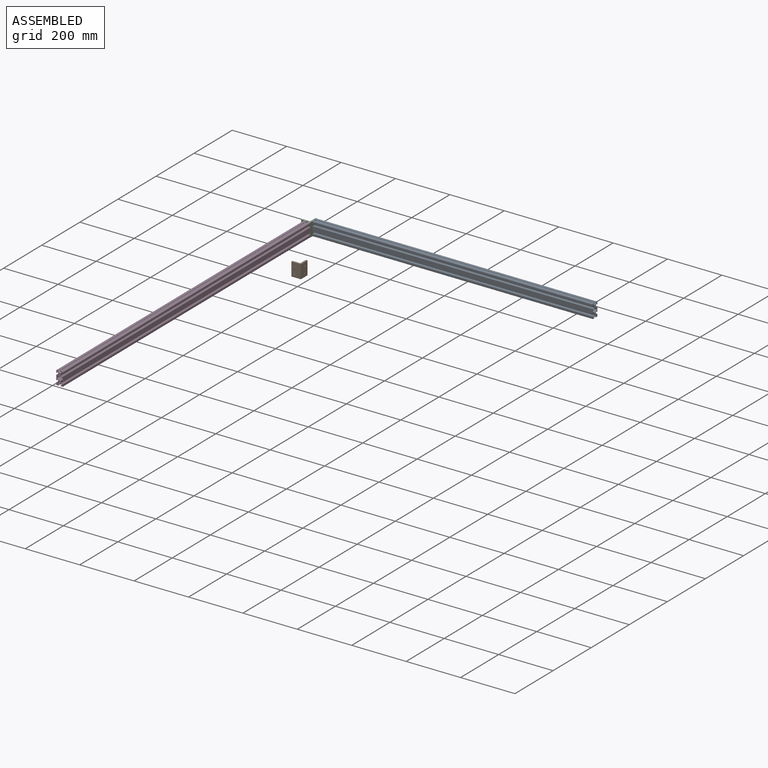
[diagram: assembled view]
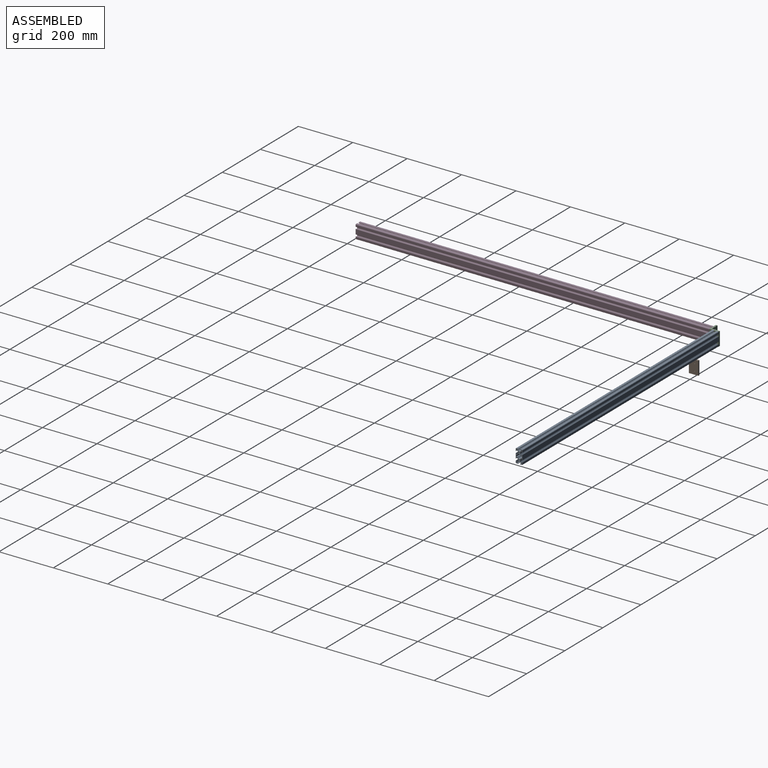
[diagram: assembled view, second angle]
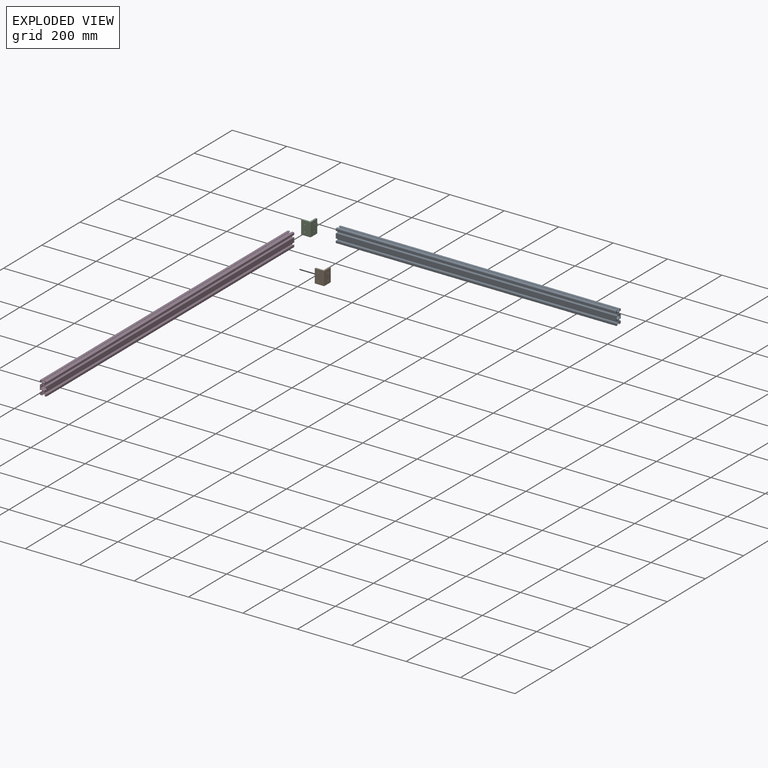
[diagram: exploded view]
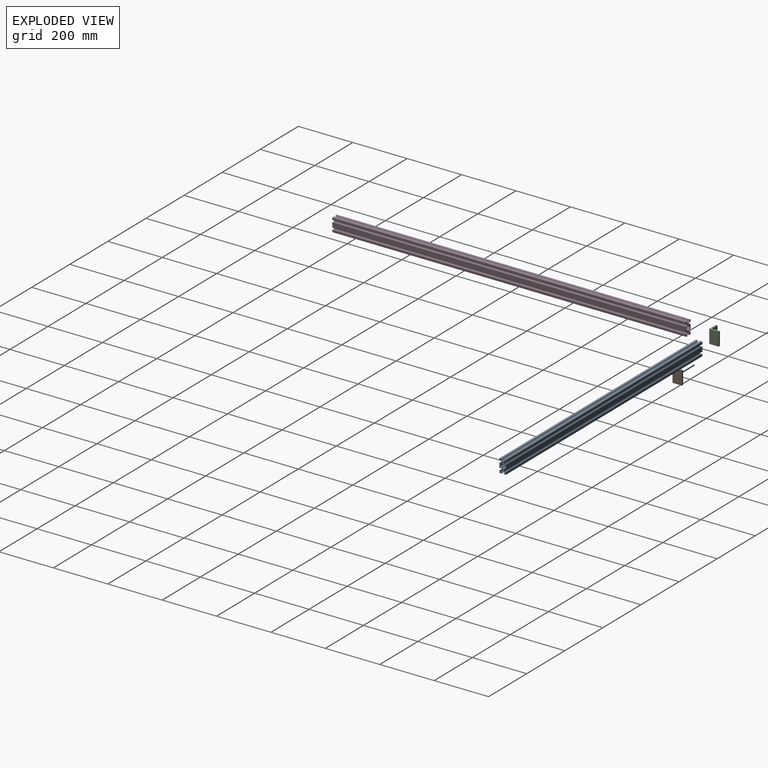
[diagram: exploded view, second angle]
ASSEMBLY  parts=4 mates=2
PART A: 108 faces, bbox 25x50x1030 mm
  f0: cylinder r=0.76mm len=1030mm, axis (0,0,-1), area 1229.6mm2, adj f1,f2,f106,f107
  f1: plane 1030x0.24mm, normal (0,-1,0), area 249.1mm2, adj f0,f105,f106,f107
  f2: plane 1030x4.34mm, normal (1,0,0), area 4470.2mm2, adj f0,f85,f106,f107
  f3: plane 1030x6.15mm, normal (-1,0,0), area 6333.4mm2, adj f4,f82,f106,f107
  f4: cylinder r=1.07mm len=1030mm, axis (0,0,-1), area 3462.3mm2, adj f3,f5,f106,f107
  f5: plane 1030x2.11mm, normal (1,0,0), area 2171.4mm2, adj f4,f6,f106,f107
  f6: cylinder r=1mm len=1030mm, axis (0,0,-1), area 2431.3mm2, adj f5,f7,f106,f107
  f7: plane 1030x3.32mm, normal (-0.71,-0.71,0), area 4838mm2, adj f6,f8,f106,f107
  f8: cylinder r=3.17mm len=1030mm, axis (0,0,-1), area 2564.4mm2, adj f7,f9,f106,f107
  f9: plane 1030x3.15mm, normal (-1,0,0), area 3241.9mm2, adj f8,f10,f106,f107
  f10: cylinder r=3.17mm len=1030mm, axis (0,0,-1), area 2564.4mm2, adj f9,f11,f106,f107
  f11: plane 1030x3.32mm, normal (-0.71,0.71,0), area 4838mm2, adj f10,f12,f106,f107
  f12: cylinder r=1mm len=1030mm, axis (0,0,-1), area 2431.3mm2, adj f11,f13,f106,f107
  f13: plane 1030x2.11mm, normal (1,0,0), area 2171.4mm2, adj f12,f14,f106,f107
  f14: cylinder r=1.07mm len=1030mm, axis (0,0,-1), area 3462.3mm2, adj f13,f15,f106,f107
  f15: plane 1030x16.36mm, normal (-1,0,0), area 16850.8mm2, adj f14,f16,f106,f107
  f16: cylinder r=1.07mm len=1030mm, axis (0,0,-1), area 3462.3mm2, adj f15,f17,f106,f107
  f17: plane 1030x2.11mm, normal (1,0,0), area 2171.4mm2, adj f16,f18,f106,f107
  f18: cylinder r=1mm len=1030mm, axis (0,0,-1), area 2431.3mm2, adj f17,f19,f106,f107
  f19: plane 1030x3.32mm, normal (-0.71,-0.71,0), area 4838mm2, adj f18,f20,f106,f107
  f20: cylinder r=3.17mm len=1030mm, axis (0,0,-1), area 2564.4mm2, adj f19,f21,f106,f107
  f21: plane 1030x3.15mm, normal (-1,0,0), area 3241.9mm2, adj f20,f22,f106,f107
  f22: cylinder r=3.17mm len=1030mm, axis (0,0,-1), area 2564.4mm2, adj f21,f23,f106,f107
  f23: plane 1030x3.32mm, normal (-0.71,0.71,0), area 4838mm2, adj f22,f24,f106,f107
  f24: cylinder r=1mm len=1030mm, axis (0,0,-1), area 2431.3mm2, adj f23,f25,f106,f107
  f25: plane 1030x2.11mm, normal (1,0,0), area 2171.4mm2, adj f24,f26,f106,f107
  f26: cylinder r=1.07mm len=1030mm, axis (0,0,-1), area 3462.3mm2, adj f25,f27,f106,f107
  f27: plane 1030x6.15mm, normal (-1,0,0), area 6333.4mm2, adj f26,f28,f106,f107
  f28: cylinder r=2.03mm len=1030mm, axis (0,0,-1), area 3286.1mm2, adj f27,f29,f106,f107
  f29: plane 1030x6.15mm, normal (0,-1,0), area 6333.4mm2, adj f28,f30,f106,f107
  f30: cylinder r=1.07mm len=1030mm, axis (0,0,-1), area 3462.3mm2, adj f29,f31,f106,f107
  f31: plane 1030x2.11mm, normal (0,1,0), area 2171.4mm2, adj f30,f32,f106,f107
  f32: cylinder r=1mm len=1030mm, axis (0,0,-1), area 2431.3mm2, adj f31,f33,f106,f107
  f33: plane 1030x3.32mm, normal (0.71,-0.71,0), area 4838mm2, adj f32,f34,f106,f107
  f34: cylinder r=3.17mm len=1030mm, axis (0,0,-1), area 2564.4mm2, adj f33,f35,f106,f107
  f35: plane 1030x3.15mm, normal (0,-1,0), area 3241.9mm2, adj f34,f36,f106,f107
  f36: cylinder r=3.17mm len=1030mm, axis (0,0,-1), area 2564.4mm2, adj f35,f37,f106,f107
  f37: plane 1030x3.32mm, normal (-0.71,-0.71,0), area 4838mm2, adj f36,f38,f106,f107
  f38: cylinder r=1mm len=1030mm, axis (0,0,-1), area 2431.3mm2, adj f37,f39,f106,f107
  f39: plane 1030x2.11mm, normal (0,1,0), area 2171.4mm2, adj f38,f40,f106,f107
  f40: cylinder r=1.07mm len=1030mm, axis (0,0,-1), area 3462.3mm2, adj f39,f41,f106,f107
  f41: plane 1030x6.15mm, normal (0,-1,0), area 6333.4mm2, adj f40,f42,f106,f107
  f42: cylinder r=2.03mm len=1030mm, axis (0,0,-1), area 3286.1mm2, adj f41,f43,f106,f107
  f43: plane 1030x6.15mm, normal (1,0,0), area 6333.4mm2, adj f42,f44,f106,f107
  f44: cylinder r=1.07mm len=1030mm, axis (0,0,-1), area 3462.3mm2, adj f43,f45,f106,f107
  f45: plane 1030x2.11mm, normal (-1,0,0), area 2171.4mm2, adj f44,f46,f106,f107
  f46: cylinder r=1mm len=1030mm, axis (0,0,-1), area 2431.3mm2, adj f45,f47,f106,f107
  f47: plane 1030x3.32mm, normal (0.71,0.71,0), area 4838mm2, adj f46,f48,f106,f107
  f48: cylinder r=3.17mm len=1030mm, axis (0,0,-1), area 2564.4mm2, adj f47,f49,f106,f107
  f49: plane 1030x3.15mm, normal (1,0,0), area 3241.9mm2, adj f48,f50,f106,f107
  f50: cylinder r=3.17mm len=1030mm, axis (0,0,-1), area 2564.4mm2, adj f49,f51,f106,f107
  f51: plane 1030x3.32mm, normal (0.71,-0.71,0), area 4838mm2, adj f50,f52,f106,f107
  f52: cylinder r=1mm len=1030mm, axis (0,0,-1), area 2431.3mm2, adj f51,f53,f106,f107
  f53: plane 1030x2.11mm, normal (-1,0,0), area 2171.4mm2, adj f52,f54,f106,f107
  f54: cylinder r=1.07mm len=1030mm, axis (0,0,-1), area 3462.3mm2, adj f53,f55,f106,f107
  f55: plane 1030x16.36mm, normal (1,0,0), area 16850.8mm2, adj f54,f56,f106,f107
  f56: cylinder r=1.07mm len=1030mm, axis (0,0,-1), area 3462.3mm2, adj f55,f57,f106,f107
  f57: plane 1030x2.11mm, normal (-1,0,0), area 2171.4mm2, adj f56,f58,f106,f107
  f58: cylinder r=1mm len=1030mm, axis (0,0,-1), area 2431.3mm2, adj f57,f59,f106,f107
  f59: plane 1030x3.32mm, normal (0.71,0.71,0), area 4838mm2, adj f58,f60,f106,f107
  f60: cylinder r=3.17mm len=1030mm, axis (0,0,-1), area 2564.4mm2, adj f59,f61,f106,f107
  f61: plane 1030x3.15mm, normal (1,0,0), area 3241.9mm2, adj f60,f62,f106,f107
  f62: cylinder r=3.17mm len=1030mm, axis (0,0,-1), area 2564.4mm2, adj f61,f63,f106,f107
  f63: plane 1030x3.32mm, normal (0.71,-0.71,0), area 4838mm2, adj f62,f64,f106,f107
  f64: cylinder r=1mm len=1030mm, axis (0,0,-1), area 2431.3mm2, adj f63,f65,f106,f107
  f65: plane 1030x2.11mm, normal (-1,0,0), area 2171.4mm2, adj f64,f66,f106,f107
  f66: cylinder r=1.07mm len=1030mm, axis (0,0,-1), area 3462.3mm2, adj f65,f67,f106,f107
  f67: plane 1030x6.15mm, normal (1,0,0), area 6333.4mm2, adj f66,f68,f106,f107
  f68: cylinder r=2.03mm len=1030mm, axis (0,0,-1), area 3286.1mm2, adj f67,f69,f106,f107
  f69: plane 1030x6.15mm, normal (0,1,0), area 6333.4mm2, adj f68,f70,f106,f107
  f70: cylinder r=1.07mm len=1030mm, axis (0,0,-1), area 3462.3mm2, adj f69,f71,f106,f107
  f71: plane 1030x2.11mm, normal (0,-1,0), area 2171.4mm2, adj f70,f72,f106,f107
  f72: cylinder r=1mm len=1030mm, axis (0,0,-1), area 2431.3mm2, adj f71,f73,f106,f107
  f73: plane 1030x3.32mm, normal (-0.71,0.71,0), area 4838mm2, adj f72,f74,f106,f107
  f74: cylinder r=3.17mm len=1030mm, axis (0,0,-1), area 2564.4mm2, adj f73,f75,f106,f107
  f75: plane 1030x3.15mm, normal (0,1,0), area 3241.9mm2, adj f74,f76,f106,f107
  f76: cylinder r=3.17mm len=1030mm, axis (0,0,-1), area 2564.4mm2, adj f75,f77,f106,f107
  f77: plane 1030x3.32mm, normal (0.71,0.71,0), area 4838mm2, adj f76,f78,f106,f107
  f78: cylinder r=1mm len=1030mm, axis (0,0,-1), area 2431.3mm2, adj f77,f79,f106,f107
  f79: plane 1030x2.11mm, normal (0,-1,0), area 2171.4mm2, adj f78,f80,f106,f107
  f80: cylinder r=1.07mm len=1030mm, axis (0,0,-1), area 3462.3mm2, adj f79,f81,f106,f107
  f81: plane 1030x6.15mm, normal (0,1,0), area 6333.4mm2, adj f80,f82,f106,f107
  f82: cylinder r=2.03mm len=1030mm, axis (0,0,-1), area 3286.1mm2, adj f3,f81,f106,f107
  f83: cylinder r=2.5mm len=1030mm, axis (0,0,-1), area 16179.2mm2, adj f106,f107
  f84: cylinder r=2.5mm len=1030mm, axis (0,0,-1), area 16179.2mm2, adj f106,f107
  f85: cylinder r=0.76mm len=1030mm, axis (0,0,-1), area 1229.6mm2, adj f2,f86,f106,f107
  f86: plane 1030x0.24mm, normal (0,1,0), area 249.1mm2, adj f85,f87,f106,f107
  f87: cylinder r=3.14mm len=1030mm, axis (0,0,-1), area 2541.6mm2, adj f86,f88,f106,f107
  f88: plane 1030x3.32mm, normal (0.71,0.71,0), area 4838mm2, adj f87,f89,f106,f107
  f89: cylinder r=3.17mm len=1030mm, axis (0,0,-1), area 2564.4mm2, adj f88,f90,f106,f107
  f90: plane 1030x3.15mm, normal (0,1,0), area 3241.9mm2, adj f89,f91,f106,f107
  f91: cylinder r=3.17mm len=1030mm, axis (0,0,-1), area 2564.4mm2, adj f90,f92,f106,f107
  f92: plane 1030x3.32mm, normal (-0.71,0.71,0), area 4838mm2, adj f91,f93,f106,f107
  f93: cylinder r=3.14mm len=1030mm, axis (0,0,-1), area 2541.6mm2, adj f92,f94,f106,f107
  f94: plane 1030x0.24mm, normal (0,1,0), area 249.1mm2, adj f93,f95,f106,f107
  f95: cylinder r=0.76mm len=1030mm, axis (0,0,-1), area 1229.6mm2, adj f94,f96,f106,f107
  f96: plane 1030x4.34mm, normal (-1,0,0), area 4470.2mm2, adj f95,f97,f106,f107
  f97: cylinder r=0.76mm len=1030mm, axis (0,0,-1), area 1229.6mm2, adj f96,f98,f106,f107
  f98: plane 1030x0.24mm, normal (0,-1,0), area 249.1mm2, adj f97,f99,f106,f107
  f99: cylinder r=3.14mm len=1030mm, axis (0,0,-1), area 2541.6mm2, adj f98,f100,f106,f107
  f100: plane 1030x3.32mm, normal (-0.71,-0.71,0), area 4838mm2, adj f99,f101,f106,f107
  f101: cylinder r=3.17mm len=1030mm, axis (0,0,-1), area 2564.4mm2, adj f100,f102,f106,f107
  f102: plane 1030x3.15mm, normal (0,-1,0), area 3241.9mm2, adj f101,f103,f106,f107
  f103: cylinder r=3.17mm len=1030mm, axis (0,0,-1), area 2564.4mm2, adj f102,f104,f106,f107
  f104: plane 1030x3.32mm, normal (0.71,-0.71,0), area 4838mm2, adj f103,f105,f106,f107
  f105: cylinder r=3.14mm len=1030mm, axis (0,0,-1), area 2541.6mm2, adj f1,f104,f106,f107
  f106: plane 50x25mm, normal (0,0,-1), area 481.7mm2, adj f0,f1,f2,f3,f4,f5,f6,f7
  f107: plane 50x25mm, normal (0,0,1), area 481.7mm2, adj f0,f1,f2,f3,f4,f5,f6,f7
PART B: 12 faces, bbox 34.7x34.7x50 mm
  f0: plane 50x6mm, normal (0,1,0), area 300mm2, adj f1,f5,f6,f7
  f1: plane 50x28.7mm, normal (-1,0,0), area 1415.8mm2, adj f0,f2,f6,f7,f10,f11
  f2: plane 50x28.7mm, normal (0,1,0), area 1415.8mm2, adj f1,f3,f6,f7,f8,f9
  f3: plane 50x6mm, normal (-1,0,0), area 300mm2, adj f2,f4,f6,f7
  f4: plane 50x34.7mm, normal (0,-1,0), area 1715.8mm2, adj f3,f5,f6,f7,f8,f9
  f5: plane 50x34.7mm, normal (1,0,0), area 1715.8mm2, adj f0,f4,f6,f7,f10,f11
  f6: plane 34.7x34.7mm, normal (0,0,1), area 380.4mm2, adj f0,f1,f2,f3,f4,f5
  f7: plane 34.7x34.7mm, normal (0,0,-1), area 380.4mm2, adj f0,f1,f2,f3,f4,f5
  f8: cylinder r=1.75mm len=6mm, axis (0,1,0), area 66mm2, adj f2,f4
  f9: cylinder r=1.75mm len=6mm, axis (0,1,0), area 66mm2, adj f2,f4
  f10: cylinder r=1.75mm len=6mm, axis (-1,0,0), area 66mm2, adj f1,f5
  f11: cylinder r=1.75mm len=6mm, axis (-1,0,0), area 66mm2, adj f1,f5
PART C: same geometry as B
PART D: 108 faces, bbox 25x50x1300 mm
  f0: cylinder r=0.76mm len=1300mm, axis (0,0,-1), area 1551.9mm2, adj f1,f2,f106,f107
  f1: plane 1300x0.24mm, normal (0,-1,0), area 314.4mm2, adj f0,f105,f106,f107
  f2: plane 1300x4.34mm, normal (1,0,0), area 5642mm2, adj f0,f85,f106,f107
  f3: plane 1300x6.15mm, normal (-1,0,0), area 7993.6mm2, adj f4,f82,f106,f107
  f4: cylinder r=1.07mm len=1300mm, axis (0,0,-1), area 4370mm2, adj f3,f5,f106,f107
  f5: plane 1300x2.11mm, normal (1,0,0), area 2740.6mm2, adj f4,f6,f106,f107
  f6: cylinder r=1mm len=1300mm, axis (0,0,-1), area 3068.6mm2, adj f5,f7,f106,f107
  f7: plane 1300x3.32mm, normal (-0.71,-0.71,0), area 6106.2mm2, adj f6,f8,f106,f107
  f8: cylinder r=3.17mm len=1300mm, axis (0,0,-1), area 3236.6mm2, adj f7,f9,f106,f107
  f9: plane 1300x3.15mm, normal (-1,0,0), area 4091.7mm2, adj f8,f10,f106,f107
  f10: cylinder r=3.17mm len=1300mm, axis (0,0,-1), area 3236.6mm2, adj f9,f11,f106,f107
  f11: plane 1300x3.32mm, normal (-0.71,0.71,0), area 6106.2mm2, adj f10,f12,f106,f107
  f12: cylinder r=1mm len=1300mm, axis (0,0,-1), area 3068.6mm2, adj f11,f13,f106,f107
  f13: plane 1300x2.11mm, normal (1,0,0), area 2740.6mm2, adj f12,f14,f106,f107
  f14: cylinder r=1.07mm len=1300mm, axis (0,0,-1), area 4370mm2, adj f13,f15,f106,f107
  f15: plane 1300x16.36mm, normal (-1,0,0), area 21268mm2, adj f14,f16,f106,f107
  f16: cylinder r=1.07mm len=1300mm, axis (0,0,-1), area 4370mm2, adj f15,f17,f106,f107
  f17: plane 1300x2.11mm, normal (1,0,0), area 2740.6mm2, adj f16,f18,f106,f107
  f18: cylinder r=1mm len=1300mm, axis (0,0,-1), area 3068.6mm2, adj f17,f19,f106,f107
  f19: plane 1300x3.32mm, normal (-0.71,-0.71,0), area 6106.2mm2, adj f18,f20,f106,f107
  f20: cylinder r=3.17mm len=1300mm, axis (0,0,-1), area 3236.6mm2, adj f19,f21,f106,f107
  f21: plane 1300x3.15mm, normal (-1,0,0), area 4091.7mm2, adj f20,f22,f106,f107
  f22: cylinder r=3.17mm len=1300mm, axis (0,0,-1), area 3236.6mm2, adj f21,f23,f106,f107
  f23: plane 1300x3.32mm, normal (-0.71,0.71,0), area 6106.2mm2, adj f22,f24,f106,f107
  f24: cylinder r=1mm len=1300mm, axis (0,0,-1), area 3068.6mm2, adj f23,f25,f106,f107
  f25: plane 1300x2.11mm, normal (1,0,0), area 2740.6mm2, adj f24,f26,f106,f107
  f26: cylinder r=1.07mm len=1300mm, axis (0,0,-1), area 4370mm2, adj f25,f27,f106,f107
  f27: plane 1300x6.15mm, normal (-1,0,0), area 7993.6mm2, adj f26,f28,f106,f107
  f28: cylinder r=2.03mm len=1300mm, axis (0,0,-1), area 4147.5mm2, adj f27,f29,f106,f107
  f29: plane 1300x6.15mm, normal (0,-1,0), area 7993.6mm2, adj f28,f30,f106,f107
  f30: cylinder r=1.07mm len=1300mm, axis (0,0,-1), area 4370mm2, adj f29,f31,f106,f107
  f31: plane 1300x2.11mm, normal (0,1,0), area 2740.6mm2, adj f30,f32,f106,f107
  f32: cylinder r=1mm len=1300mm, axis (0,0,-1), area 3068.6mm2, adj f31,f33,f106,f107
  f33: plane 1300x3.32mm, normal (0.71,-0.71,0), area 6106.2mm2, adj f32,f34,f106,f107
  f34: cylinder r=3.17mm len=1300mm, axis (0,0,-1), area 3236.6mm2, adj f33,f35,f106,f107
  f35: plane 1300x3.15mm, normal (0,-1,0), area 4091.7mm2, adj f34,f36,f106,f107
  f36: cylinder r=3.17mm len=1300mm, axis (0,0,-1), area 3236.6mm2, adj f35,f37,f106,f107
  f37: plane 1300x3.32mm, normal (-0.71,-0.71,0), area 6106.2mm2, adj f36,f38,f106,f107
  f38: cylinder r=1mm len=1300mm, axis (0,0,-1), area 3068.6mm2, adj f37,f39,f106,f107
  f39: plane 1300x2.11mm, normal (0,1,0), area 2740.6mm2, adj f38,f40,f106,f107
  f40: cylinder r=1.07mm len=1300mm, axis (0,0,-1), area 4370mm2, adj f39,f41,f106,f107
  f41: plane 1300x6.15mm, normal (0,-1,0), area 7993.6mm2, adj f40,f42,f106,f107
  f42: cylinder r=2.03mm len=1300mm, axis (0,0,-1), area 4147.5mm2, adj f41,f43,f106,f107
  f43: plane 1300x6.15mm, normal (1,0,0), area 7993.6mm2, adj f42,f44,f106,f107
  f44: cylinder r=1.07mm len=1300mm, axis (0,0,-1), area 4370mm2, adj f43,f45,f106,f107
  f45: plane 1300x2.11mm, normal (-1,0,0), area 2740.6mm2, adj f44,f46,f106,f107
  f46: cylinder r=1mm len=1300mm, axis (0,0,-1), area 3068.6mm2, adj f45,f47,f106,f107
  f47: plane 1300x3.32mm, normal (0.71,0.71,0), area 6106.2mm2, adj f46,f48,f106,f107
  f48: cylinder r=3.17mm len=1300mm, axis (0,0,-1), area 3236.6mm2, adj f47,f49,f106,f107
  f49: plane 1300x3.15mm, normal (1,0,0), area 4091.7mm2, adj f48,f50,f106,f107
  f50: cylinder r=3.17mm len=1300mm, axis (0,0,-1), area 3236.6mm2, adj f49,f51,f106,f107
  f51: plane 1300x3.32mm, normal (0.71,-0.71,0), area 6106.2mm2, adj f50,f52,f106,f107
  f52: cylinder r=1mm len=1300mm, axis (0,0,-1), area 3068.6mm2, adj f51,f53,f106,f107
  f53: plane 1300x2.11mm, normal (-1,0,0), area 2740.6mm2, adj f52,f54,f106,f107
  f54: cylinder r=1.07mm len=1300mm, axis (0,0,-1), area 4370mm2, adj f53,f55,f106,f107
  f55: plane 1300x16.36mm, normal (1,0,0), area 21268mm2, adj f54,f56,f106,f107
  f56: cylinder r=1.07mm len=1300mm, axis (0,0,-1), area 4370mm2, adj f55,f57,f106,f107
  f57: plane 1300x2.11mm, normal (-1,0,0), area 2740.6mm2, adj f56,f58,f106,f107
  f58: cylinder r=1mm len=1300mm, axis (0,0,-1), area 3068.6mm2, adj f57,f59,f106,f107
  f59: plane 1300x3.32mm, normal (0.71,0.71,0), area 6106.2mm2, adj f58,f60,f106,f107
  f60: cylinder r=3.17mm len=1300mm, axis (0,0,-1), area 3236.6mm2, adj f59,f61,f106,f107
  f61: plane 1300x3.15mm, normal (1,0,0), area 4091.7mm2, adj f60,f62,f106,f107
  f62: cylinder r=3.17mm len=1300mm, axis (0,0,-1), area 3236.6mm2, adj f61,f63,f106,f107
  f63: plane 1300x3.32mm, normal (0.71,-0.71,0), area 6106.2mm2, adj f62,f64,f106,f107
  f64: cylinder r=1mm len=1300mm, axis (0,0,-1), area 3068.6mm2, adj f63,f65,f106,f107
  f65: plane 1300x2.11mm, normal (-1,0,0), area 2740.6mm2, adj f64,f66,f106,f107
  f66: cylinder r=1.07mm len=1300mm, axis (0,0,-1), area 4370mm2, adj f65,f67,f106,f107
  f67: plane 1300x6.15mm, normal (1,0,0), area 7993.6mm2, adj f66,f68,f106,f107
  f68: cylinder r=2.03mm len=1300mm, axis (0,0,-1), area 4147.5mm2, adj f67,f69,f106,f107
  f69: plane 1300x6.15mm, normal (0,1,0), area 7993.6mm2, adj f68,f70,f106,f107
  f70: cylinder r=1.07mm len=1300mm, axis (0,0,-1), area 4370mm2, adj f69,f71,f106,f107
  f71: plane 1300x2.11mm, normal (0,-1,0), area 2740.6mm2, adj f70,f72,f106,f107
  f72: cylinder r=1mm len=1300mm, axis (0,0,-1), area 3068.6mm2, adj f71,f73,f106,f107
  f73: plane 1300x3.32mm, normal (-0.71,0.71,0), area 6106.2mm2, adj f72,f74,f106,f107
  f74: cylinder r=3.17mm len=1300mm, axis (0,0,-1), area 3236.6mm2, adj f73,f75,f106,f107
  f75: plane 1300x3.15mm, normal (0,1,0), area 4091.7mm2, adj f74,f76,f106,f107
  f76: cylinder r=3.17mm len=1300mm, axis (0,0,-1), area 3236.6mm2, adj f75,f77,f106,f107
  f77: plane 1300x3.32mm, normal (0.71,0.71,0), area 6106.2mm2, adj f76,f78,f106,f107
  f78: cylinder r=1mm len=1300mm, axis (0,0,-1), area 3068.6mm2, adj f77,f79,f106,f107
  f79: plane 1300x2.11mm, normal (0,-1,0), area 2740.6mm2, adj f78,f80,f106,f107
  f80: cylinder r=1.07mm len=1300mm, axis (0,0,-1), area 4370mm2, adj f79,f81,f106,f107
  f81: plane 1300x6.15mm, normal (0,1,0), area 7993.6mm2, adj f80,f82,f106,f107
  f82: cylinder r=2.03mm len=1300mm, axis (0,0,-1), area 4147.5mm2, adj f3,f81,f106,f107
  f83: cylinder r=2.5mm len=1300mm, axis (0,0,-1), area 20420.4mm2, adj f106,f107
  f84: cylinder r=2.5mm len=1300mm, axis (0,0,-1), area 20420.4mm2, adj f106,f107
  f85: cylinder r=0.76mm len=1300mm, axis (0,0,-1), area 1551.9mm2, adj f2,f86,f106,f107
  f86: plane 1300x0.24mm, normal (0,1,0), area 314.4mm2, adj f85,f87,f106,f107
  f87: cylinder r=3.14mm len=1300mm, axis (0,0,-1), area 3207.9mm2, adj f86,f88,f106,f107
  f88: plane 1300x3.32mm, normal (0.71,0.71,0), area 6106.2mm2, adj f87,f89,f106,f107
  f89: cylinder r=3.17mm len=1300mm, axis (0,0,-1), area 3236.6mm2, adj f88,f90,f106,f107
  f90: plane 1300x3.15mm, normal (0,1,0), area 4091.7mm2, adj f89,f91,f106,f107
  f91: cylinder r=3.17mm len=1300mm, axis (0,0,-1), area 3236.6mm2, adj f90,f92,f106,f107
  f92: plane 1300x3.32mm, normal (-0.71,0.71,0), area 6106.2mm2, adj f91,f93,f106,f107
  f93: cylinder r=3.14mm len=1300mm, axis (0,0,-1), area 3207.9mm2, adj f92,f94,f106,f107
  f94: plane 1300x0.24mm, normal (0,1,0), area 314.4mm2, adj f93,f95,f106,f107
  f95: cylinder r=0.76mm len=1300mm, axis (0,0,-1), area 1551.9mm2, adj f94,f96,f106,f107
  f96: plane 1300x4.34mm, normal (-1,0,0), area 5642mm2, adj f95,f97,f106,f107
  f97: cylinder r=0.76mm len=1300mm, axis (0,0,-1), area 1551.9mm2, adj f96,f98,f106,f107
  f98: plane 1300x0.24mm, normal (0,-1,0), area 314.4mm2, adj f97,f99,f106,f107
  f99: cylinder r=3.14mm len=1300mm, axis (0,0,-1), area 3207.9mm2, adj f98,f100,f106,f107
  f100: plane 1300x3.32mm, normal (-0.71,-0.71,0), area 6106.2mm2, adj f99,f101,f106,f107
  f101: cylinder r=3.17mm len=1300mm, axis (0,0,-1), area 3236.6mm2, adj f100,f102,f106,f107
  f102: plane 1300x3.15mm, normal (0,-1,0), area 4091.7mm2, adj f101,f103,f106,f107
  f103: cylinder r=3.17mm len=1300mm, axis (0,0,-1), area 3236.6mm2, adj f102,f104,f106,f107
  f104: plane 1300x3.32mm, normal (0.71,-0.71,0), area 6106.2mm2, adj f103,f105,f106,f107
  f105: cylinder r=3.14mm len=1300mm, axis (0,0,-1), area 3207.9mm2, adj f1,f104,f106,f107
  f106: plane 50x25mm, normal (0,0,-1), area 481.7mm2, adj f0,f1,f2,f3,f4,f5,f6,f7
  f107: plane 50x25mm, normal (0,0,1), area 481.7mm2, adj f0,f1,f2,f3,f4,f5,f6,f7
PLACE A rot(axis=(0.58,-0.58,-0.58),120deg) t=(-190.78,-207.53,-465.37)mm
PLACE B t=(525.69,-987.2,-588.29)mm
PLACE C t=(514.52,-920.03,-477.87)mm
PLACE D rot(axis=(-1,0,0),90deg) t=(-63.28,-409.73,-440.37)mm
MATE fastened D.f107 <-> C.f4  axis (0,1,0) through (-0.78,-329.73,-452.87)mm
MATE fastened A.f107 <-> C.f5  axis (-1,0,0) through (-0.78,-295.03,-452.87)mm
